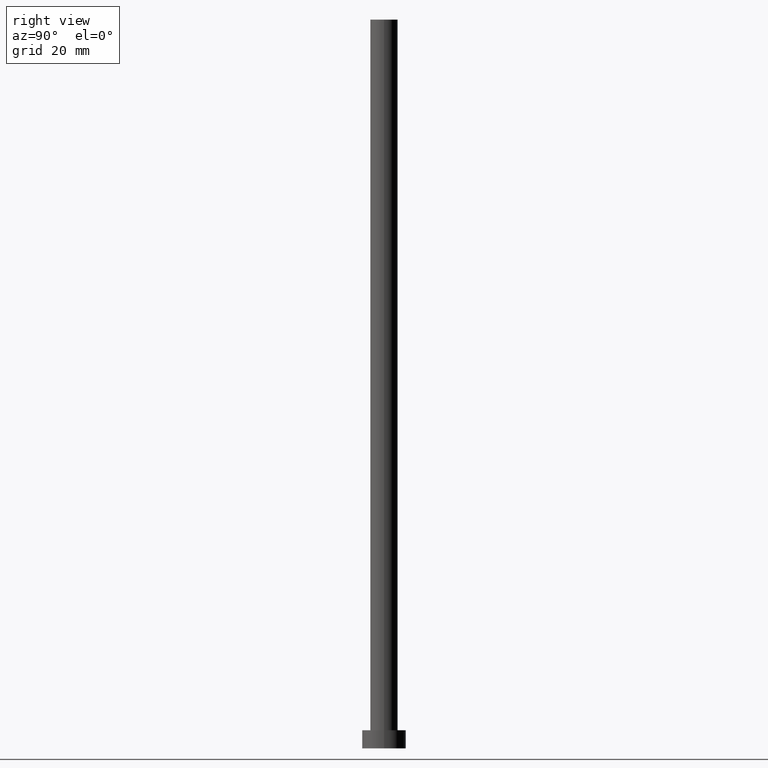
[diagram: clean part render]
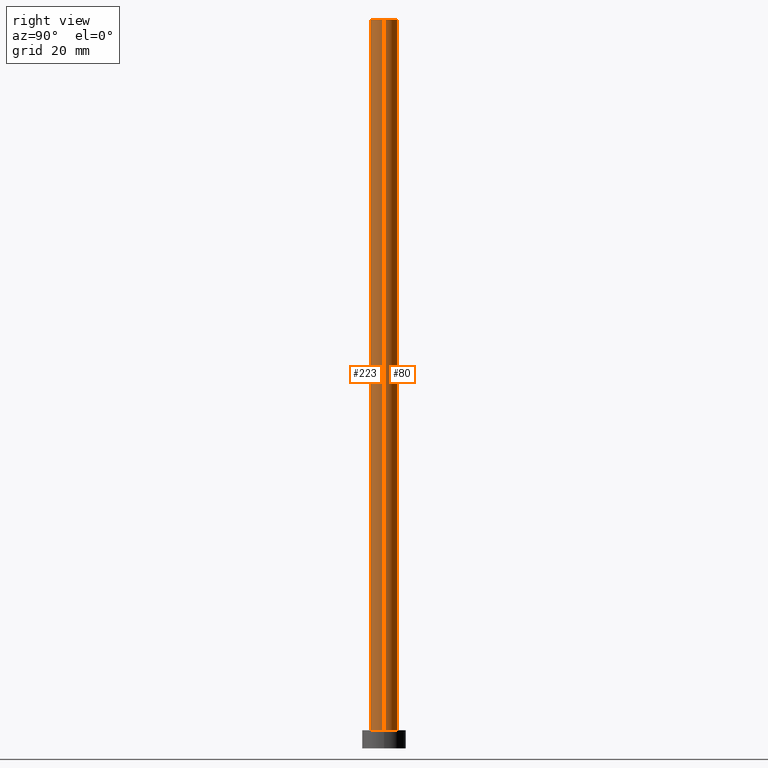
[diagram: same view with one multi-face feature highlighted, each face labeled with its STEP entity id]
A machine part, right view. The highlighted faces form ONE feature: a constant-radius fillet chain: 2 tangent blend faces with common blend radius 3.75 mm. The faces share edges in the B-rep.
Their STEP definitions:
[1] entity #80 (Cylinder):
#2 = CARTESIAN_POINT ( 'NONE',  ( 0.000000000000000000, 0.000000000000000000, 200.0000000000000000 ) ) ;
#19 = CYLINDRICAL_SURFACE ( 'NONE', #198, 3.750000000000000000 ) ;
#30 = EDGE_CURVE ( 'NONE', #59, #235, #176, .T. ) ;
#31 = AXIS2_PLACEMENT_3D ( 'NONE', #76, #154, #225 ) ;
#40 = FACE_OUTER_BOUND ( 'NONE', #152, .T. ) ;
#44 = ORIENTED_EDGE ( 'NONE', *, *, #109, .F. ) ;
#58 = VECTOR ( 'NONE', #139, 1000.000000000000000 ) ;
#59 = VERTEX_POINT ( 'NONE', #66 ) ;
#61 = VERTEX_POINT ( 'NONE', #126 ) ;
#63 = VECTOR ( 'NONE', #133, 1000.000000000000000 ) ;
#66 = CARTESIAN_POINT ( 'NONE',  ( 3.750000000000000000, 4.592425496802573972E-16, 200.0000000000000000 ) ) ;
#76 = CARTESIAN_POINT ( 'NONE',  ( 0.000000000000000000, 0.000000000000000000, 5.000000000000000000 ) ) ;
#80 = ADVANCED_FACE ( 'NONE', ( #40 ), #19, .T. ) ;
#83 = VERTEX_POINT ( 'NONE', #84 ) ;
#84 = CARTESIAN_POINT ( 'NONE',  ( -3.750000000000000000, 0.000000000000000000, 5.000000000000000000 ) ) ;
#89 = LINE ( 'NONE', #167, #63 ) ;
#96 = DIRECTION ( 'NONE',  ( 0.000000000000000000, 0.000000000000000000, 1.000000000000000000 ) ) ;
#109 = EDGE_CURVE ( 'NONE', #61, #83, #89, .T. ) ;
#114 = CARTESIAN_POINT ( 'NONE',  ( 0.000000000000000000, 0.000000000000000000, 200.0000000000000000 ) ) ;
#121 = AXIS2_PLACEMENT_3D ( 'NONE', #114, #96, #248 ) ;
#126 = CARTESIAN_POINT ( 'NONE',  ( -3.750000000000000000, 0.000000000000000000, 200.0000000000000000 ) ) ;
#132 = ORIENTED_EDGE ( 'NONE', *, *, #227, .T. ) ;
#133 = DIRECTION ( 'NONE',  ( -0.000000000000000000, -0.000000000000000000, -1.000000000000000000 ) ) ;
#137 = DIRECTION ( 'NONE',  ( -0.000000000000000000, -0.000000000000000000, -1.000000000000000000 ) ) ;
#139 = DIRECTION ( 'NONE',  ( -0.000000000000000000, -0.000000000000000000, -1.000000000000000000 ) ) ;
#142 = EDGE_CURVE ( 'NONE', #59, #61, #159, .T. ) ;
#152 = EDGE_LOOP ( 'NONE', ( #232, #156, #132, #44 ) ) ;
#154 = DIRECTION ( 'NONE',  ( 0.000000000000000000, 0.000000000000000000, 1.000000000000000000 ) ) ;
#156 = ORIENTED_EDGE ( 'NONE', *, *, #30, .T. ) ;
#158 = CIRCLE ( 'NONE', #31, 3.750000000000000000 ) ;
#159 = CIRCLE ( 'NONE', #121, 3.750000000000000000 ) ;
#160 = CARTESIAN_POINT ( 'NONE',  ( 3.750000000000000000, 4.592425496802573972E-16, 200.0000000000000000 ) ) ;
#167 = CARTESIAN_POINT ( 'NONE',  ( -3.750000000000000000, 0.000000000000000000, 200.0000000000000000 ) ) ;
#176 = LINE ( 'NONE', #160, #58 ) ;
#198 = AXIS2_PLACEMENT_3D ( 'NONE', #2, #137, #208 ) ;
#204 = CARTESIAN_POINT ( 'NONE',  ( 3.750000000000000000, 4.592425496802573972E-16, 5.000000000000000000 ) ) ;
#208 = DIRECTION ( 'NONE',  ( -1.000000000000000000, 0.000000000000000000, 0.000000000000000000 ) ) ;
#225 = DIRECTION ( 'NONE',  ( 1.000000000000000000, 0.000000000000000000, 0.000000000000000000 ) ) ;
#227 = EDGE_CURVE ( 'NONE', #235, #83, #158, .T. ) ;
#232 = ORIENTED_EDGE ( 'NONE', *, *, #142, .F. ) ;
#235 = VERTEX_POINT ( 'NONE', #204 ) ;
#248 = DIRECTION ( 'NONE',  ( 1.000000000000000000, 0.000000000000000000, 0.000000000000000000 ) ) ;
[2] entity #223 (Cylinder):
#11 = EDGE_LOOP ( 'NONE', ( #106, #222, #241, #130 ) ) ;
#12 = DIRECTION ( 'NONE',  ( -0.000000000000000000, -0.000000000000000000, -1.000000000000000000 ) ) ;
#15 = AXIS2_PLACEMENT_3D ( 'NONE', #242, #68, #184 ) ;
#30 = EDGE_CURVE ( 'NONE', #59, #235, #176, .T. ) ;
#58 = VECTOR ( 'NONE', #139, 1000.000000000000000 ) ;
#59 = VERTEX_POINT ( 'NONE', #66 ) ;
#61 = VERTEX_POINT ( 'NONE', #126 ) ;
#63 = VECTOR ( 'NONE', #133, 1000.000000000000000 ) ;
#66 = CARTESIAN_POINT ( 'NONE',  ( 3.750000000000000000, 4.592425496802573972E-16, 200.0000000000000000 ) ) ;
#68 = DIRECTION ( 'NONE',  ( 0.000000000000000000, 0.000000000000000000, 1.000000000000000000 ) ) ;
#75 = CARTESIAN_POINT ( 'NONE',  ( 0.000000000000000000, 0.000000000000000000, 5.000000000000000000 ) ) ;
#79 = DIRECTION ( 'NONE',  ( 0.000000000000000000, 0.000000000000000000, 1.000000000000000000 ) ) ;
#83 = VERTEX_POINT ( 'NONE', #84 ) ;
#84 = CARTESIAN_POINT ( 'NONE',  ( -3.750000000000000000, 0.000000000000000000, 5.000000000000000000 ) ) ;
#89 = LINE ( 'NONE', #167, #63 ) ;
#101 = DIRECTION ( 'NONE',  ( -1.000000000000000000, 0.000000000000000000, 0.000000000000000000 ) ) ;
#106 = ORIENTED_EDGE ( 'NONE', *, *, #30, .F. ) ;
#109 = EDGE_CURVE ( 'NONE', #61, #83, #89, .T. ) ;
#116 = CIRCLE ( 'NONE', #200, 3.750000000000000000 ) ;
#118 = CYLINDRICAL_SURFACE ( 'NONE', #124, 3.750000000000000000 ) ;
#124 = AXIS2_PLACEMENT_3D ( 'NONE', #136, #12, #101 ) ;
#125 = EDGE_CURVE ( 'NONE', #61, #59, #237, .T. ) ;
#126 = CARTESIAN_POINT ( 'NONE',  ( -3.750000000000000000, 0.000000000000000000, 200.0000000000000000 ) ) ;
#130 = ORIENTED_EDGE ( 'NONE', *, *, #239, .T. ) ;
#133 = DIRECTION ( 'NONE',  ( -0.000000000000000000, -0.000000000000000000, -1.000000000000000000 ) ) ;
#136 = CARTESIAN_POINT ( 'NONE',  ( 0.000000000000000000, 0.000000000000000000, 200.0000000000000000 ) ) ;
#139 = DIRECTION ( 'NONE',  ( -0.000000000000000000, -0.000000000000000000, -1.000000000000000000 ) ) ;
#160 = CARTESIAN_POINT ( 'NONE',  ( 3.750000000000000000, 4.592425496802573972E-16, 200.0000000000000000 ) ) ;
#167 = CARTESIAN_POINT ( 'NONE',  ( -3.750000000000000000, 0.000000000000000000, 200.0000000000000000 ) ) ;
#172 = FACE_OUTER_BOUND ( 'NONE', #11, .T. ) ;
#176 = LINE ( 'NONE', #160, #58 ) ;
#184 = DIRECTION ( 'NONE',  ( 1.000000000000000000, 0.000000000000000000, 0.000000000000000000 ) ) ;
#191 = DIRECTION ( 'NONE',  ( 1.000000000000000000, 0.000000000000000000, 0.000000000000000000 ) ) ;
#200 = AXIS2_PLACEMENT_3D ( 'NONE', #75, #79, #191 ) ;
#204 = CARTESIAN_POINT ( 'NONE',  ( 3.750000000000000000, 4.592425496802573972E-16, 5.000000000000000000 ) ) ;
#222 = ORIENTED_EDGE ( 'NONE', *, *, #125, .F. ) ;
#223 = ADVANCED_FACE ( 'NONE', ( #172 ), #118, .T. ) ;
#235 = VERTEX_POINT ( 'NONE', #204 ) ;
#237 = CIRCLE ( 'NONE', #15, 3.750000000000000000 ) ;
#239 = EDGE_CURVE ( 'NONE', #83, #235, #116, .T. ) ;
#241 = ORIENTED_EDGE ( 'NONE', *, *, #109, .T. ) ;
#242 = CARTESIAN_POINT ( 'NONE',  ( 0.000000000000000000, 0.000000000000000000, 200.0000000000000000 ) ) ;